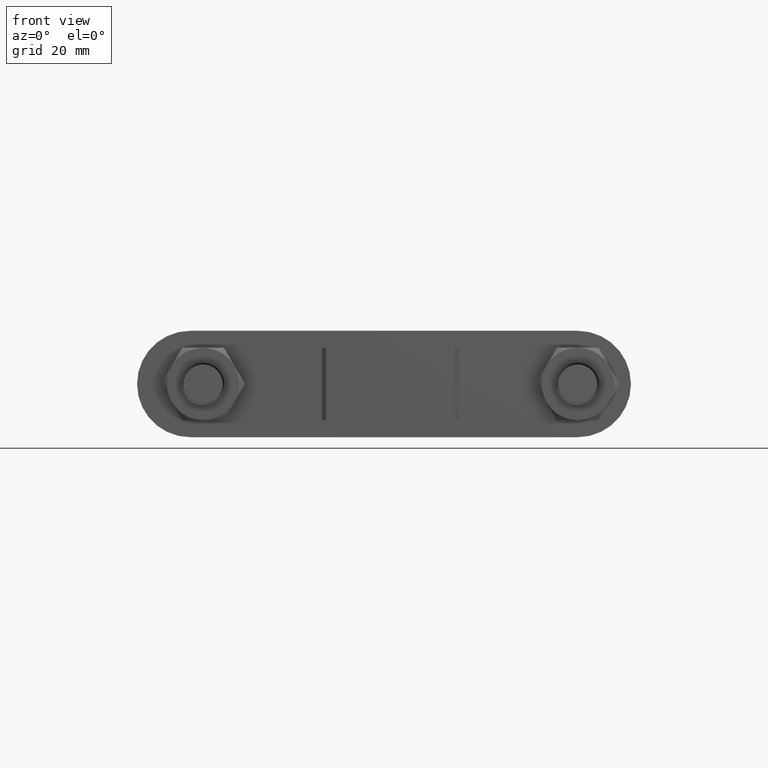
[diagram: clean part render]
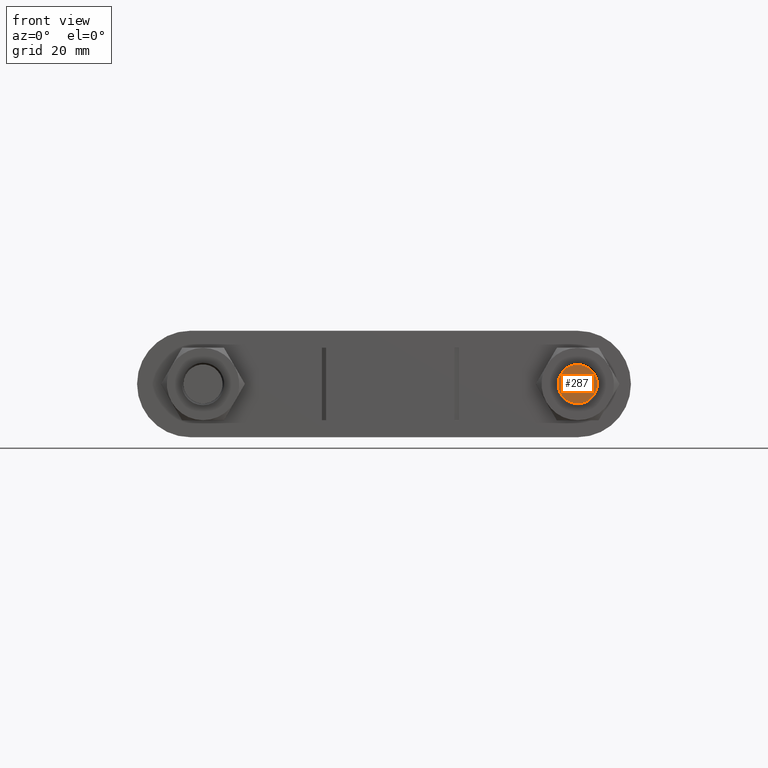
[diagram: same view with one face highlighted and labeled with its STEP entity id]
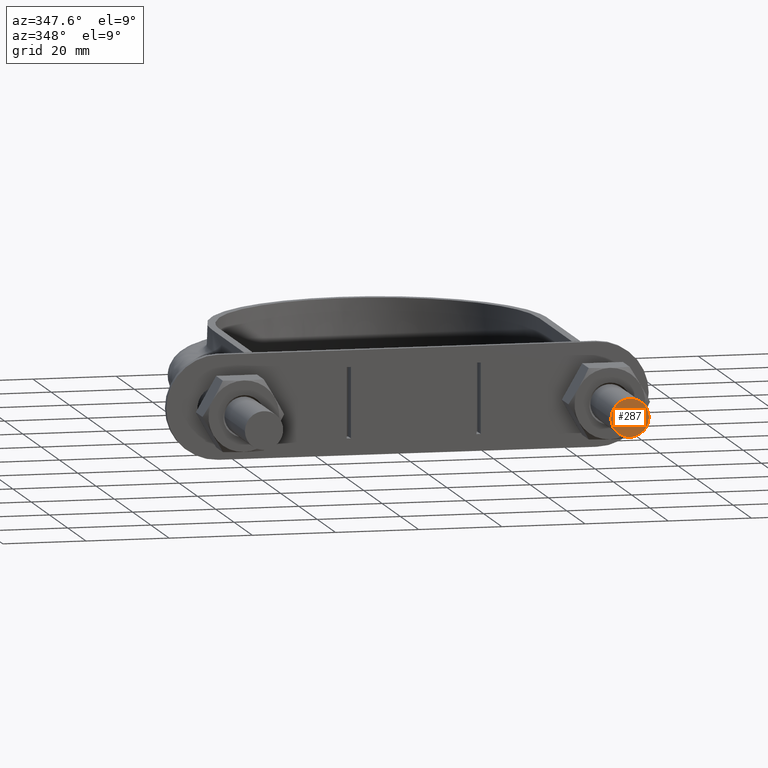
[diagram: same view with one face highlighted and labeled with its STEP entity id]
A machine part, front view. The second image highlights one B-rep face of the part: STEP entity #287.
A second angle (auxiliary view) of the same face is appended — the face is thin or edge-on in the first view.
In plain terms, the highlighted planar face has unit normal (0, 1, -0).
Its self-contained STEP definition (entity closure, byte-faithful):
#287 = ADVANCED_FACE( '', ( #430 ), #431, .F. );
#430 = FACE_OUTER_BOUND( '', #1512, .T. );
#431 = PLANE( '', #1513 );
#1512 = EDGE_LOOP( '', ( #1863 ) );
#1513 = AXIS2_PLACEMENT_3D( '', #1864, #1865, #1866 );
#1863 = ORIENTED_EDGE( '', *, *, #2592, .F. );
#1864 = CARTESIAN_POINT( '', ( 44.0000000000000, -5.38826795681846E-015, 6.12303176911192E-017 ) );
#1865 = DIRECTION( '', ( 1.22460635382238E-016, 1.00000000000000, -6.12303176911189E-017 ) );
#1866 = DIRECTION( '', ( -1.00000000000000, 1.22460635382238E-016, -7.49830360911069E-033 ) );
#2592 = EDGE_CURVE( '', #2861, #2861, #2862, .T. );
#2861 = VERTEX_POINT( '', #3514 );
#2862 = CIRCLE( '', #3515, 4.60000000000000 );
#3514 = CARTESIAN_POINT( '', ( 39.4000000000000, -4.82494903406016E-015, 6.12303176911191E-017 ) );
#3515 = AXIS2_PLACEMENT_3D( '', #4143, #4144, #4145 );
#4143 = CARTESIAN_POINT( '', ( 44.0000000000000, -5.38826795681846E-015, 6.12303176911192E-017 ) );
#4144 = DIRECTION( '', ( 1.22460635382238E-016, 1.00000000000000, -6.12303176911189E-017 ) );
#4145 = DIRECTION( '', ( -1.00000000000000, 1.22460635382238E-016, -1.01150562509412E-032 ) );